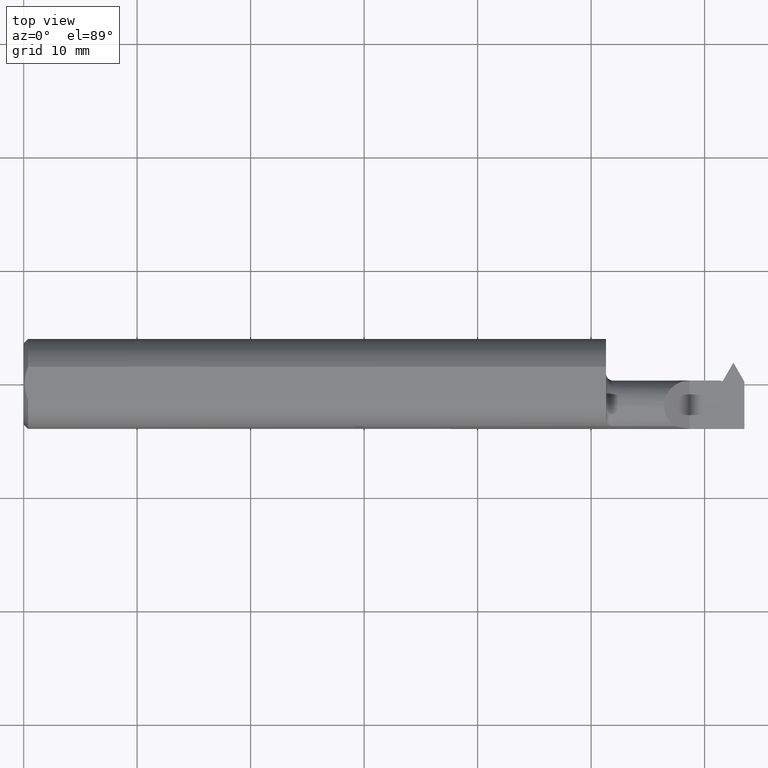
[diagram: clean part render]
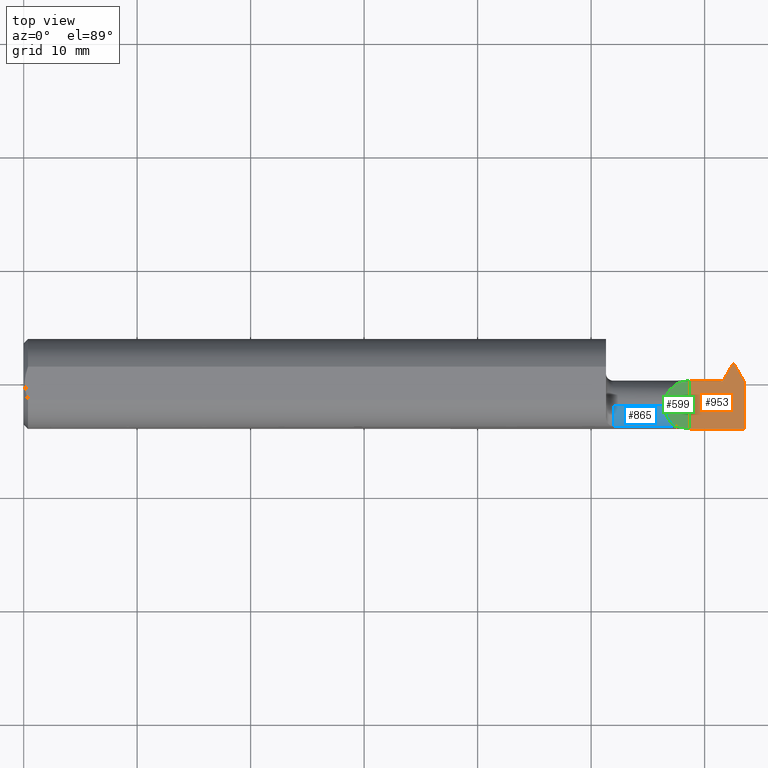
[diagram: same view with three faces highlighted in distinct colors, each labeled with its STEP entity id]
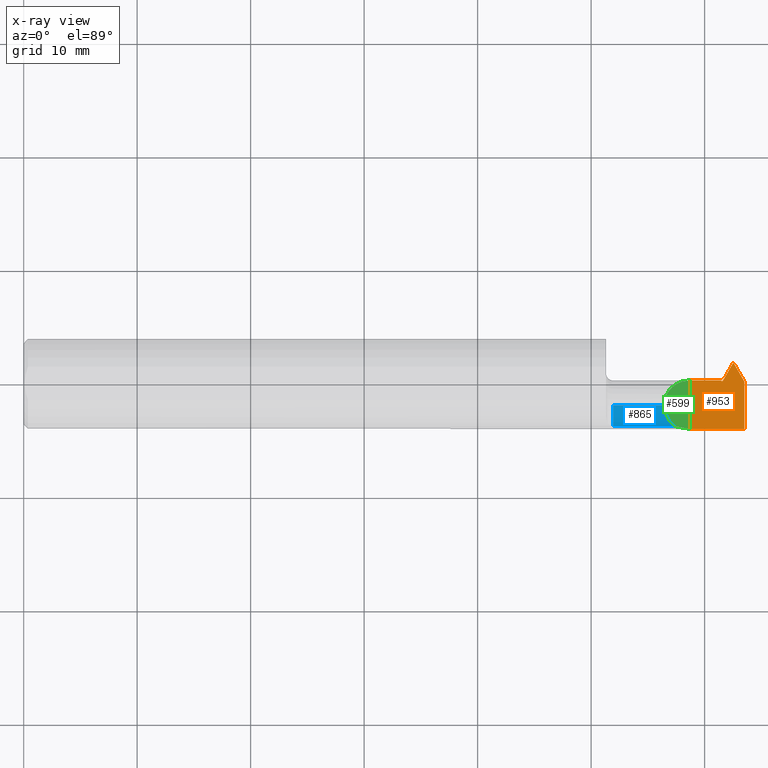
[diagram: x-ray of the same camera — body ghosted, the three highlighted faces saturated]
A machine part, top view with three faces highlighted in distinct colors.
The next image is the same camera in x-ray (body ghosted, the three faces saturated) — at least one of them is partly hidden behind the body in this view.
Their STEP definitions:

[orange] entity #953 — the highlighted planar face has unit normal (-0, 0, -1).
#9 = ORIENTED_EDGE ( 'NONE', *, *, #968, .F. ) ;
#14 = EDGE_CURVE ( 'NONE', #862, #596, #715, .T. ) ;
#18 = VECTOR ( 'NONE', #514, 39.37007874015748143 ) ;
#22 = ORIENTED_EDGE ( 'NONE', *, *, #921, .F. ) ;
#31 = VERTEX_POINT ( 'NONE', #785 ) ;
#45 = ORIENTED_EDGE ( 'NONE', *, *, #401, .T. ) ;
#49 = VECTOR ( 'NONE', #466, 39.37007874015748143 ) ;
#74 = ORIENTED_EDGE ( 'NONE', *, *, #827, .T. ) ;
#95 = DIRECTION ( 'NONE',  ( 0.4999999999999994449, 0.8660254037844390407, 0.000000000000000000 ) ) ;
#126 = VECTOR ( 'NONE', #885, 39.37007874015748143 ) ;
#129 = CARTESIAN_POINT ( 'NONE',  ( 2.020000000000000018, 0.01190000000000008412, -3.979970649922725226E-17 ) ) ;
#135 = VERTEX_POINT ( 'NONE', #509 ) ;
#141 = EDGE_CURVE ( 'NONE', #135, #819, #502, .T. ) ;
#142 = VECTOR ( 'NONE', #605, 39.37007874015748143 ) ;
#150 = LINE ( 'NONE', #302, #252 ) ;
#158 = EDGE_CURVE ( 'NONE', #819, #515, #667, .T. ) ;
#171 = CARTESIAN_POINT ( 'NONE',  ( 2.419954283310243426, 0.01190000000000008412, 0.000000000000000000 ) ) ;
#178 = FACE_OUTER_BOUND ( 'NONE', #926, .T. ) ;
#252 = VECTOR ( 'NONE', #914, 39.37007874015748143 ) ;
#257 = LINE ( 'NONE', #944, #779 ) ;
#272 = EDGE_CURVE ( 'NONE', #449, #292, #290, .T. ) ;
#290 = LINE ( 'NONE', #831, #49 ) ;
#292 = VERTEX_POINT ( 'NONE', #315 ) ;
#302 = CARTESIAN_POINT ( 'NONE',  ( 2.310000000000000497, 0.07189999999999975577, -3.979970649922725226E-17 ) ) ;
#307 = CARTESIAN_POINT ( 'NONE',  ( 2.310000000000000053, 0.01190000000000008412, -3.979970649922725226E-17 ) ) ;
#314 = DIRECTION ( 'NONE',  ( 1.000000000000000000, 0.000000000000000000, 0.000000000000000000 ) ) ;
#315 = CARTESIAN_POINT ( 'NONE',  ( 2.424954283310243763, 0.009900000000000085815, 0.000000000000000000 ) ) ;
#320 = CARTESIAN_POINT ( 'NONE',  ( 2.310000000000000053, 0.1749999999999999889, -3.979970649922725226E-17 ) ) ;
#323 = DIRECTION ( 'NONE',  ( 0.5000000000000012212, -0.8660254037844379305, 0.000000000000000000 ) ) ;
#336 = CARTESIAN_POINT ( 'NONE',  ( 2.460750000000000437, 0.07190000000000001945, -3.979970649922725226E-17 ) ) ;
#358 = ORIENTED_EDGE ( 'NONE', *, *, #14, .F. ) ;
#363 = VECTOR ( 'NONE', #323, 39.37007874015748143 ) ;
#378 = VECTOR ( 'NONE', #314, 39.37007874015748143 ) ;
#401 = EDGE_CURVE ( 'NONE', #862, #979, #150, .T. ) ;
#449 = VERTEX_POINT ( 'NONE', #868 ) ;
#466 = DIRECTION ( 'NONE',  ( 1.000000000000000000, -0.000000000000000000, -0.000000000000000000 ) ) ;
#502 = LINE ( 'NONE', #747, #126 ) ;
#507 = LINE ( 'NONE', #972, #18 ) ;
#509 = CARTESIAN_POINT ( 'NONE',  ( 2.310000000000000053, -0.1560999999999999888, -3.979970649922725226E-17 ) ) ;
#514 = DIRECTION ( 'NONE',  ( -0.000000000000000000, -1.000000000000000000, -0.000000000000000000 ) ) ;
#515 = VERTEX_POINT ( 'NONE', #171 ) ;
#552 = ORIENTED_EDGE ( 'NONE', *, *, #158, .F. ) ;
#555 = CARTESIAN_POINT ( 'NONE',  ( 2.500000000000000000, -0.1560999999999999888, -3.979970649922725226E-17 ) ) ;
#563 = EDGE_CURVE ( 'NONE', #515, #449, #507, .T. ) ;
#565 = DIRECTION ( 'NONE',  ( -1.000000000000000000, 0.000000000000000000, 0.000000000000000000 ) ) ;
#574 = ORIENTED_EDGE ( 'NONE', *, *, #272, .F. ) ;
#596 = VERTEX_POINT ( 'NONE', #893 ) ;
#600 = CARTESIAN_POINT ( 'NONE',  ( 2.500000000000000000, 0.1749999999999999889, -3.979970649922725226E-17 ) ) ;
#605 = DIRECTION ( 'NONE',  ( -0.000000000000000000, 1.000000000000000000, -0.000000000000000000 ) ) ;
#667 = LINE ( 'NONE', #129, #378 ) ;
#708 = DIRECTION ( 'NONE',  ( -0.000000000000000000, 0.000000000000000000, -1.000000000000000000 ) ) ;
#712 = CARTESIAN_POINT ( 'NONE',  ( 2.463249999999999940, 0.07190000000000006108, 0.000000000000000000 ) ) ;
#715 = LINE ( 'NONE', #870, #363 ) ;
#747 = CARTESIAN_POINT ( 'NONE',  ( 2.310000000000000053, 0.1749999999999999889, -3.979970649922725226E-17 ) ) ;
#757 = ORIENTED_EDGE ( 'NONE', *, *, #563, .F. ) ;
#779 = VECTOR ( 'NONE', #95, 39.37007874015748854 ) ;
#785 = CARTESIAN_POINT ( 'NONE',  ( 2.500000000000000000, -0.1560999999999999333, -3.979970649922725226E-17 ) ) ;
#796 = AXIS2_PLACEMENT_3D ( 'NONE', #320, #708, #565 ) ;
#819 = VERTEX_POINT ( 'NONE', #307 ) ;
#827 = EDGE_CURVE ( 'NONE', #31, #596, #982, .T. ) ;
#831 = CARTESIAN_POINT ( 'NONE',  ( 2.424954283310243763, 0.009900000000000085815, 0.000000000000000000 ) ) ;
#862 = VERTEX_POINT ( 'NONE', #712 ) ;
#866 = DIRECTION ( 'NONE',  ( -1.000000000000000000, -0.000000000000000000, -0.000000000000000000 ) ) ;
#868 = CARTESIAN_POINT ( 'NONE',  ( 2.419954283310243426, 0.009900000000000085815, 0.000000000000000000 ) ) ;
#870 = CARTESIAN_POINT ( 'NONE',  ( 2.462000000000000188, 0.07406506350946080730, 0.000000000000000000 ) ) ;
#871 = PLANE ( 'NONE',  #796 ) ;
#874 = ORIENTED_EDGE ( 'NONE', *, *, #141, .F. ) ;
#875 = LINE ( 'NONE', #555, #924 ) ;
#885 = DIRECTION ( 'NONE',  ( -0.000000000000000000, 1.000000000000000000, -0.000000000000000000 ) ) ;
#893 = CARTESIAN_POINT ( 'NONE',  ( 2.500000000000000000, 0.008247132821843725786, 0.000000000000000000 ) ) ;
#914 = DIRECTION ( 'NONE',  ( -1.000000000000000000, -1.757042062170602524E-15, 0.000000000000000000 ) ) ;
#921 = EDGE_CURVE ( 'NONE', #292, #979, #257, .T. ) ;
#924 = VECTOR ( 'NONE', #866, 39.37007874015748143 ) ;
#926 = EDGE_LOOP ( 'NONE', ( #74, #358, #45, #22, #574, #757, #552, #874, #9 ) ) ;
#944 = CARTESIAN_POINT ( 'NONE',  ( 2.424954283310243763, 0.009900000000000085815, 0.000000000000000000 ) ) ;
#953 = ADVANCED_FACE ( 'NONE', ( #178 ), #871, .F. ) ;
#968 = EDGE_CURVE ( 'NONE', #31, #135, #875, .T. ) ;
#972 = CARTESIAN_POINT ( 'NONE',  ( 2.419954283310243426, 0.009900000000000085815, 0.000000000000000000 ) ) ;
#979 = VERTEX_POINT ( 'NONE', #336 ) ;
#982 = LINE ( 'NONE', #600, #142 ) ;

[blue] entity #865 — the highlighted cylindrical surface (edge-blend (fillet) strip) has radius 2.2352 mm, axis along (-1, -0, -0).
#30 = FACE_OUTER_BOUND ( 'NONE', #691, .T. ) ;
#61 = VERTEX_POINT ( 'NONE', #119 ) ;
#66 = VECTOR ( 'NONE', #845, 39.37007874015748143 ) ;
#79 = CARTESIAN_POINT ( 'NONE',  ( 2.221000000000000085, -0.1472695137976346991, 0.05175809410911754588 ) ) ;
#83 = CARTESIAN_POINT ( 'NONE',  ( 2.222100000000000186, -0.1048058126387024641, 0.08800000000000002265 ) ) ;
#89 = ORIENTED_EDGE ( 'NONE', *, *, #615, .T. ) ;
#101 = VERTEX_POINT ( 'NONE', #650 ) ;
#119 = CARTESIAN_POINT ( 'NONE',  ( 2.044999999999999929, -0.07609999999999990383, 0.08799999999999999489 ) ) ;
#121 = VERTEX_POINT ( 'NONE', #276 ) ;
#179 = ORIENTED_EDGE ( 'NONE', *, *, #286, .F. ) ;
#182 = DIRECTION ( 'NONE',  ( 0.000000000000000000, 0.000000000000000000, 1.000000000000000000 ) ) ;
#191 = ORIENTED_EDGE ( 'NONE', *, *, #934, .T. ) ;
#243 = DIRECTION ( 'NONE',  ( -1.000000000000000000, -0.000000000000000000, -0.000000000000000000 ) ) ;
#276 = CARTESIAN_POINT ( 'NONE',  ( 2.044999999999999929, -0.1472695137976346991, 0.05175809410911754588 ) ) ;
#284 = CARTESIAN_POINT ( 'NONE',  ( 2.044999999999999929, -0.07609999999999990383, 0.000000000000000000 ) ) ;
#286 = EDGE_CURVE ( 'NONE', #101, #330, #333, .T. ) ;
#310 = EDGE_CURVE ( 'NONE', #121, #330, #697, .T. ) ;
#329 = CARTESIAN_POINT ( 'NONE',  ( 2.020000000000000018, -0.07609999999999990383, 0.08799999999999999489 ) ) ;
#330 = VERTEX_POINT ( 'NONE', #927 ) ;
#333 =( BOUNDED_CURVE ( )  B_SPLINE_CURVE ( 3, ( #856, #83, #383, #840 ),
 .UNSPECIFIED., .F., .F. ) 
 B_SPLINE_CURVE_WITH_KNOTS ( ( 4, 4 ),
 ( 0.000000000000000000, 0.9420143062005867929 ),
 .UNSPECIFIED. ) 
 CURVE ( )  GEOMETRIC_REPRESENTATION_ITEM ( )  RATIONAL_B_SPLINE_CURVE ( ( 1.000000000000000000, 0.9274078068410991360, 0.9274078068410991360, 1.000000000000000000 ) ) 
 REPRESENTATION_ITEM ( '' )  );
#383 = CARTESIAN_POINT ( 'NONE',  ( 2.235126238519718367, -0.1303858984336271343, 0.07497376148028192522 ) ) ;
#469 = AXIS2_PLACEMENT_3D ( 'NONE', #791, #243, #182 ) ;
#539 = VECTOR ( 'NONE', #716, 39.37007874015748143 ) ;
#588 = CIRCLE ( 'NONE', #879, 0.08799999999999999489 ) ;
#590 = DIRECTION ( 'NONE',  ( 1.000000000000000000, 0.000000000000000000, 0.000000000000000000 ) ) ;
#615 = EDGE_CURVE ( 'NONE', #61, #121, #588, .T. ) ;
#646 = LINE ( 'NONE', #329, #539 ) ;
#650 = CARTESIAN_POINT ( 'NONE',  ( 2.222100000000000186, -0.07609999999999990383, 0.08799999999999999489 ) ) ;
#691 = EDGE_LOOP ( 'NONE', ( #179, #191, #89, #709 ) ) ;
#697 = LINE ( 'NONE', #79, #66 ) ;
#709 = ORIENTED_EDGE ( 'NONE', *, *, #310, .T. ) ;
#716 = DIRECTION ( 'NONE',  ( -1.000000000000000000, -0.000000000000000000, -0.000000000000000000 ) ) ;
#730 = DIRECTION ( 'NONE',  ( 0.000000000000000000, 0.000000000000000000, -1.000000000000000000 ) ) ;
#791 = CARTESIAN_POINT ( 'NONE',  ( 2.020000000000000018, -0.07609999999999990383, 0.000000000000000000 ) ) ;
#840 = CARTESIAN_POINT ( 'NONE',  ( 2.258341905890882462, -0.1472695137976346991, 0.05175809410911749731 ) ) ;
#845 = DIRECTION ( 'NONE',  ( 1.000000000000000000, 0.000000000000000000, 0.000000000000000000 ) ) ;
#856 = CARTESIAN_POINT ( 'NONE',  ( 2.222100000000000186, -0.07609999999999990383, 0.08799999999999999489 ) ) ;
#857 = CYLINDRICAL_SURFACE ( 'NONE', #469, 0.08799999999999999489 ) ;
#865 = ADVANCED_FACE ( 'NONE', ( #30 ), #857, .T. ) ;
#879 = AXIS2_PLACEMENT_3D ( 'NONE', #284, #590, #730 ) ;
#927 = CARTESIAN_POINT ( 'NONE',  ( 2.258341905890882462, -0.1472695137976346991, 0.05175809410911749731 ) ) ;
#934 = EDGE_CURVE ( 'NONE', #101, #61, #646, .T. ) ;

[green] entity #599 — the highlighted planar face has unit normal (-0.7071, 0, -0.7071).
#20 = ORIENTED_EDGE ( 'NONE', *, *, #478, .T. ) ;
#83 = CARTESIAN_POINT ( 'NONE',  ( 2.222100000000000186, -0.1048058126387024641, 0.08800000000000002265 ) ) ;
#101 = VERTEX_POINT ( 'NONE', #650 ) ;
#106 = CARTESIAN_POINT ( 'NONE',  ( 2.222100000000000186, -0.07609999999999990383, 0.08799999999999999489 ) ) ;
#122 = CARTESIAN_POINT ( 'NONE',  ( 2.165000000000000480, 0.1749999999999999889, 0.1450999999999999512 ) ) ;
#146 = CARTESIAN_POINT ( 'NONE',  ( 2.310000000000000053, -0.1560999679692471886, 9.999999999973052634E-05 ) ) ;
#162 = CARTESIAN_POINT ( 'NONE',  ( 2.292364034161542108, -0.1560886701028428303, 0.01773596583845823624 ) ) ;
#165 = EDGE_CURVE ( 'NONE', #227, #330, #296, .T. ) ;
#227 = VERTEX_POINT ( 'NONE', #146 ) ;
#247 = CARTESIAN_POINT ( 'NONE',  ( 2.258341905890882462, -0.1472695137976346991, 0.05175809410911749731 ) ) ;
#250 = CARTESIAN_POINT ( 'NONE',  ( 2.310000000000000053, 0.01189994318180000350, 9.999999999973052634E-05 ) ) ;
#262 = CARTESIAN_POINT ( 'NONE',  ( 2.222100000000000186, -0.02459722810174531579, 0.08800000000000000877 ) ) ;
#273 = EDGE_LOOP ( 'NONE', ( #746, #20, #889, #579 ) ) ;
#286 = EDGE_CURVE ( 'NONE', #101, #330, #333, .T. ) ;
#294 = EDGE_CURVE ( 'NONE', #440, #227, #624, .T. ) ;
#296 =( BOUNDED_CURVE ( )  B_SPLINE_CURVE ( 3, ( #913, #162, #324, #247 ),
 .UNSPECIFIED., .F., .F. ) 
 B_SPLINE_CURVE_WITH_KNOTS ( ( 4, 4 ),
 ( 4.713029595418895212, 5.050356325447889816 ),
 .UNSPECIFIED. ) 
 CURVE ( )  GEOMETRIC_REPRESENTATION_ITEM ( )  RATIONAL_B_SPLINE_CURVE ( ( 1.000000000000000000, 0.9905400143130563828, 0.9905400143130563828, 1.000000000000000000 ) ) 
 REPRESENTATION_ITEM ( '' )  );
#324 = CARTESIAN_POINT ( 'NONE',  ( 2.274980218814131927, -0.1531170741235404198, 0.03511978118586850384 ) ) ;
#330 = VERTEX_POINT ( 'NONE', #927 ) ;
#333 =( BOUNDED_CURVE ( )  B_SPLINE_CURVE ( 3, ( #856, #83, #383, #840 ),
 .UNSPECIFIED., .F., .F. ) 
 B_SPLINE_CURVE_WITH_KNOTS ( ( 4, 4 ),
 ( 0.000000000000000000, 0.9420143062005867929 ),
 .UNSPECIFIED. ) 
 CURVE ( )  GEOMETRIC_REPRESENTATION_ITEM ( )  RATIONAL_B_SPLINE_CURVE ( ( 1.000000000000000000, 0.9274078068410991360, 0.9274078068410991360, 1.000000000000000000 ) ) 
 REPRESENTATION_ITEM ( '' )  );
#360 = PLANE ( 'NONE',  #571 ) ;
#383 = CARTESIAN_POINT ( 'NONE',  ( 2.235126238519718367, -0.1303858984336271343, 0.07497376148028192522 ) ) ;
#440 = VERTEX_POINT ( 'NONE', #951 ) ;
#445 = DIRECTION ( 'NONE',  ( -0.7071067811865461294, 0.000000000000000000, 0.7071067811865487940 ) ) ;
#478 = EDGE_CURVE ( 'NONE', #440, #101, #853, .T. ) ;
#571 = AXIS2_PLACEMENT_3D ( 'NONE', #122, #670, #445 ) ;
#579 = ORIENTED_EDGE ( 'NONE', *, *, #165, .F. ) ;
#599 = ADVANCED_FACE ( 'NONE', ( #739 ), #360, .F. ) ;
#624 = LINE ( 'NONE', #700, #718 ) ;
#650 = CARTESIAN_POINT ( 'NONE',  ( 2.222100000000000186, -0.07609999999999990383, 0.08799999999999999489 ) ) ;
#670 = DIRECTION ( 'NONE',  ( -0.7071067811865489050, 0.000000000000000000, -0.7071067811865462405 ) ) ;
#700 = CARTESIAN_POINT ( 'NONE',  ( 2.310000000000000053, 0.1749999999999999889, 9.999999999973052634E-05 ) ) ;
#718 = VECTOR ( 'NONE', #905, 39.37007874015748143 ) ;
#728 = CARTESIAN_POINT ( 'NONE',  ( 2.258497261355095542, 0.01184141730464296355, 0.05160273864490429879 ) ) ;
#739 = FACE_OUTER_BOUND ( 'NONE', #273, .T. ) ;
#746 = ORIENTED_EDGE ( 'NONE', *, *, #294, .F. ) ;
#840 = CARTESIAN_POINT ( 'NONE',  ( 2.258341905890882462, -0.1472695137976346991, 0.05175809410911749731 ) ) ;
#853 =( BOUNDED_CURVE ( )  B_SPLINE_CURVE ( 3, ( #250, #728, #262, #106 ),
 .UNSPECIFIED., .F., .T. ) 
 B_SPLINE_CURVE_WITH_KNOTS ( ( 4, 4 ),
 ( 4.713525344265619310, 6.283185307179586232 ),
 .UNSPECIFIED. ) 
 CURVE ( )  GEOMETRIC_REPRESENTATION_ITEM ( )  RATIONAL_B_SPLINE_CURVE ( ( 1.000000000000000000, 0.8050056215533928361, 0.8050056215533928361, 1.000000000000000000 ) ) 
 REPRESENTATION_ITEM ( '' )  );
#856 = CARTESIAN_POINT ( 'NONE',  ( 2.222100000000000186, -0.07609999999999990383, 0.08799999999999999489 ) ) ;
#889 = ORIENTED_EDGE ( 'NONE', *, *, #286, .T. ) ;
#905 = DIRECTION ( 'NONE',  ( 0.000000000000000000, -1.000000000000000000, 0.000000000000000000 ) ) ;
#913 = CARTESIAN_POINT ( 'NONE',  ( 2.310000000000000053, -0.1560999679692471886, 9.999999999973052634E-05 ) ) ;
#927 = CARTESIAN_POINT ( 'NONE',  ( 2.258341905890882462, -0.1472695137976346991, 0.05175809410911749731 ) ) ;
#951 = CARTESIAN_POINT ( 'NONE',  ( 2.310000000000000053, 0.01189994318180000350, 9.999999999973052634E-05 ) ) ;